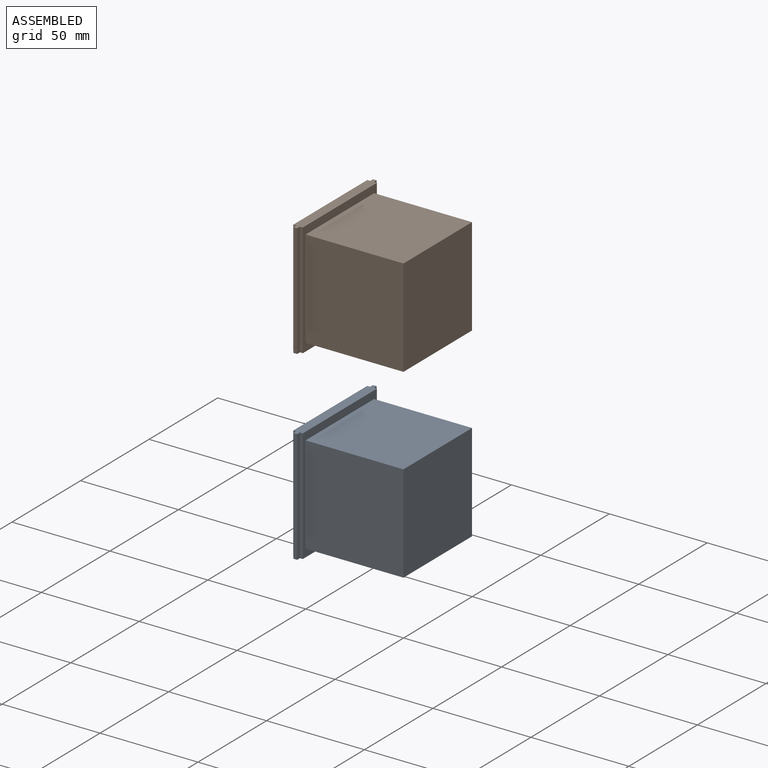
[diagram: assembled view]
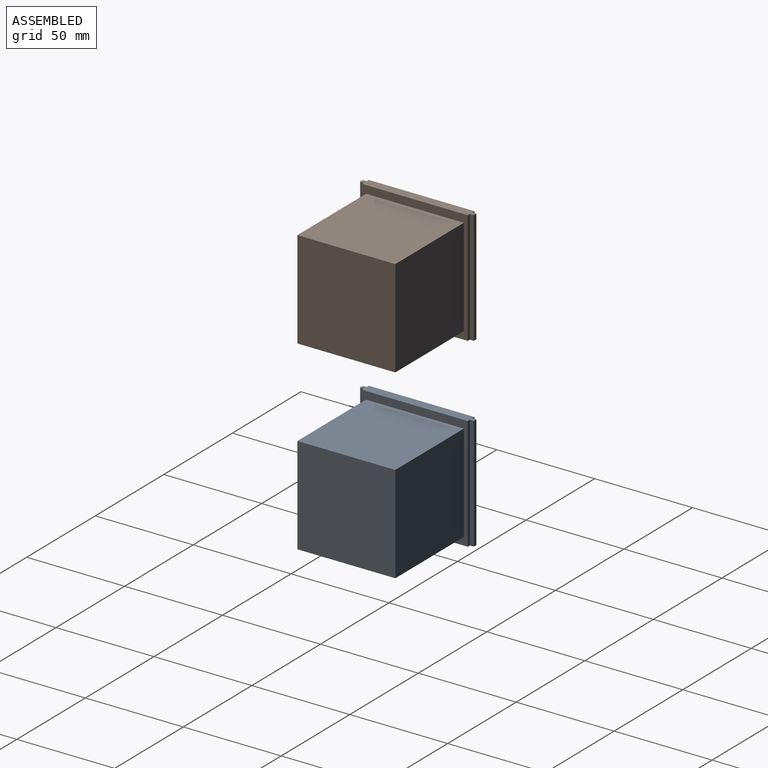
[diagram: assembled view, second angle]
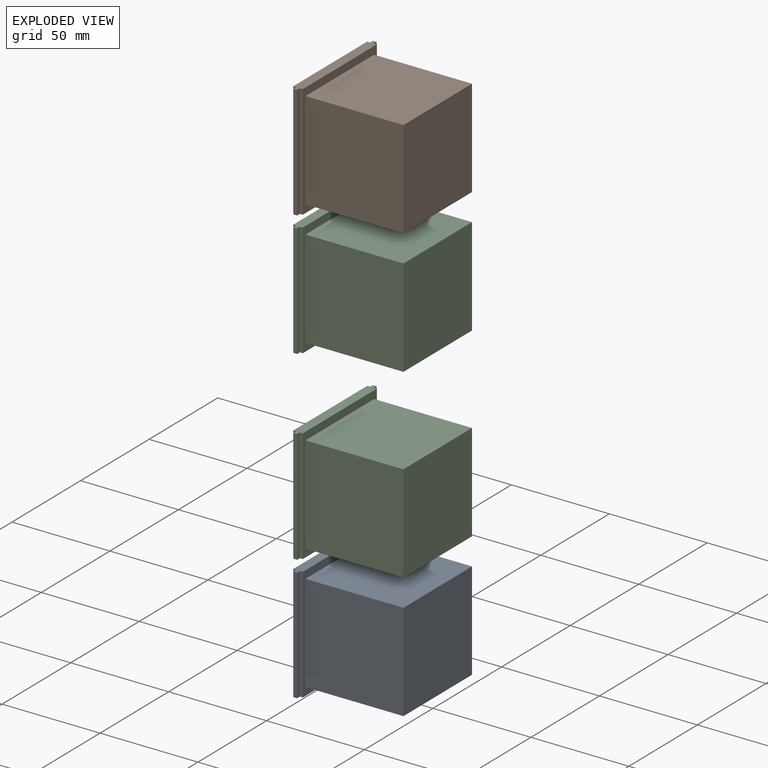
[diagram: exploded view]
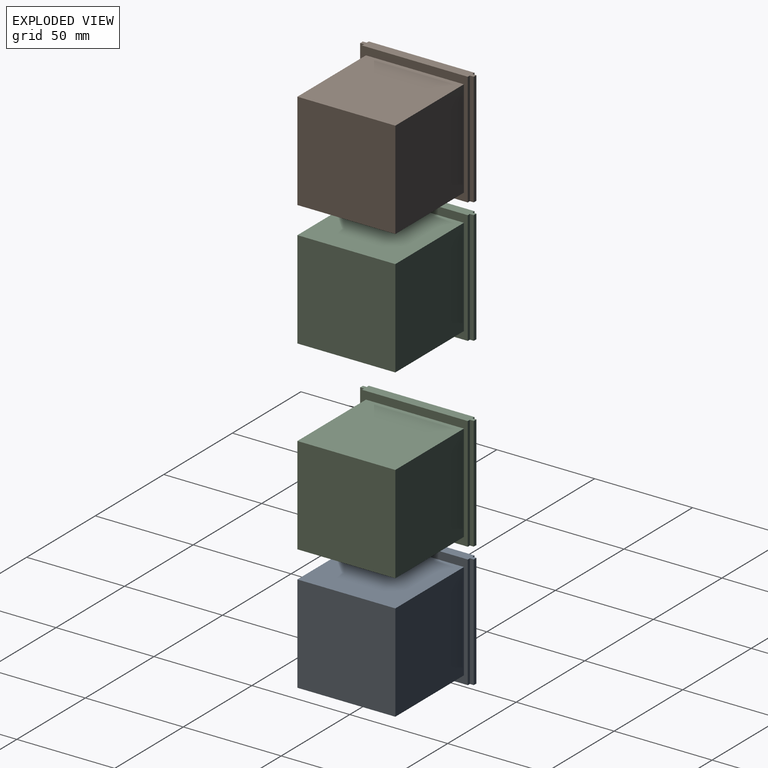
[diagram: exploded view, second angle]
FCSTD DOCUMENT  (FreeCAD 0.22R35966 (Git))
Label: OnlyContactSimulation
License: All rights reserved
LicenseURL: http://en.wikipedia.org/wiki/All_rights_reserved
objects: App::DocumentObjectGroupPython×56, PartDesign::CoordinateSystem×5, Part::FeaturePython×3, App::TextDocument×3, Part::Line×3, App::Link×2, App::Part×2, App::FeaturePython×2, App::MaterialObjectPython×2, App::DocumentObjectGroup×1
note: 11 computed .brp shape members not serialized (recipe doc carries the construction recipe); baked Part::Feature solids carry a one-line shape summary decoded from their .brp
EXTERNAL_REF file=pocketqube.FCStd obj=Part

FEATURE [App::Link] Link  label="Satellite"
  LinkPlacement = pos=(0,1.32322e-05,111) rot=(0,0,1;0rad)
  LinkedObject = -> <external pocketqube.FCStd>#Part
  Placement = pos=(0,1.32322e-05,111) rot=(0,0,1;0rad)
FEATURE [App::Link] Link001  label="Satellite001"
  LinkPlacement = pos=(0,2.45571e-05,206) rot=(0,0,1;0rad)
  LinkedObject = -> <external pocketqube.FCStd>#Part
  Placement = pos=(0,2.45571e-05,206) rot=(0,0,1;0rad)
FEATURE [Part::FeaturePython] Point  # WARN: FeaturePython — macro-defined, semantics opaque (R4)
  X = 0
  Y = 0
  Z = 0
FEATURE [App::Part] Part
  Group = -> [Point]
  Origin = -> Origin001
  Placement = pos=(27.45,1.32322e-05,57) rot=(0,0,1;0rad)
FEATURE [App::DocumentObjectGroup] Group  label="CAD"
  Group = -> [Link,Link001,Part]
FEATURE [App::DocumentObjectGroupPython] MBD_animated_vectors  # scripted group (container) (typed FeaturePython)
FEATURE [App::DocumentObjectGroupPython] MBD_constitutive_laws  # scripted group (container) (typed FeaturePython)
FEATURE [App::DocumentObjectGroupPython] MBD_drives_and_drive_callers  # scripted group (container) (typed FeaturePython)
FEATURE [App::DocumentObjectGroupPython] MBD_markers  # scripted group (container) (typed FeaturePython)
FEATURE [App::DocumentObjectGroupPython] MBD_abstract_nodes  # scripted group (container) (typed FeaturePython)
FEATURE [App::DocumentObjectGroupPython] MBD_hydraulic_nodes  # scripted group (container) (typed FeaturePython)
FEATURE [App::DocumentObjectGroupPython] MBD_structural_static_nodes  # scripted group (container) (typed FeaturePython)
FEATURE [App::DocumentObjectGroupPython] MBD_beam_elements  # scripted group (container) (typed FeaturePython)
FEATURE [App::DocumentObjectGroupPython] MBD_genel_clamps  # scripted group (container) (typed FeaturePython)
FEATURE [App::DocumentObjectGroupPython] MBD_genel_elements  # scripted group (container) (typed FeaturePython)
  Group = -> [MBD_genel_clamps]
FEATURE [App::DocumentObjectGroupPython] MBD_gravity_elements  # scripted group (container) (typed FeaturePython)
FEATURE [App::DocumentObjectGroupPython] MBD_hydraulic_fluid_elements  # scripted group (container) (typed FeaturePython)
FEATURE [App::DocumentObjectGroupPython] MBD_hydraulic_elements  # scripted group (container) (typed FeaturePython)
  Group = -> [MBD_hydraulic_fluid_elements]
FEATURE [App::DocumentObjectGroupPython] MBD_angular_acceleration_joints  # scripted group (container) (typed FeaturePython)
FEATURE [App::DocumentObjectGroupPython] MBD_angular_velocity_joints  # scripted group (container) (typed FeaturePython)
FEATURE [App::DocumentObjectGroupPython] MBD_assembly_joints  # scripted group (container) (typed FeaturePython)
FEATURE [App::DocumentObjectGroupPython] MBD_clamp_joints  # scripted group (container) (typed FeaturePython)
FEATURE [App::DocumentObjectGroupPython] MBD_coincidence_joints  # scripted group (container) (typed FeaturePython)
FEATURE [App::DocumentObjectGroupPython] MBD_cylindrical_joints  # scripted group (container) (typed FeaturePython)
FEATURE [App::DocumentObjectGroupPython] MBD_deformable_axial_joints  # scripted group (container) (typed FeaturePython)
FEATURE [App::DocumentObjectGroupPython] MBD_deformable_displacement_joints  # scripted group (container) (typed FeaturePython)
FEATURE [App::DocumentObjectGroupPython] MBD_deformable_hinge_joints  # scripted group (container) (typed FeaturePython)
FEATURE [App::DocumentObjectGroupPython] MBD_distance_joints  # scripted group (container) (typed FeaturePython)
FEATURE [App::DocumentObjectGroupPython] MBD_drive_hinge_joints  # scripted group (container) (typed FeaturePython)
FEATURE [App::DocumentObjectGroupPython] MBD_in_line_joints  # scripted group (container) (typed FeaturePython)
FEATURE [App::DocumentObjectGroupPython] MBD_in_plane_joints  # scripted group (container) (typed FeaturePython)
FEATURE [App::DocumentObjectGroupPython] MBD_linear_acceleration_joints  # scripted group (container) (typed FeaturePython)
FEATURE [App::DocumentObjectGroupPython] MBD_linear_velocity_joints  # scripted group (container) (typed FeaturePython)
FEATURE [App::DocumentObjectGroupPython] MBD_prismatic_joints  # scripted group (container) (typed FeaturePython)
FEATURE [App::DocumentObjectGroupPython] MBD_hinge_joints  # scripted group (container) (typed FeaturePython)
FEATURE [App::DocumentObjectGroupPython] MBD_revolute_pin_joints  # scripted group (container) (typed FeaturePython)
FEATURE [App::DocumentObjectGroupPython] MBD_revolute_rotation_joints  # scripted group (container) (typed FeaturePython)
FEATURE [App::DocumentObjectGroupPython] MBD_shock_absorber_joints  # scripted group (container) (typed FeaturePython)
FEATURE [App::DocumentObjectGroupPython] MBD_slider_joints  # scripted group (container) (typed FeaturePython)
FEATURE [App::DocumentObjectGroupPython] MBD_spherical_hinge_joints  # scripted group (container) (typed FeaturePython)
FEATURE [App::DocumentObjectGroupPython] MBD_total_joints  # scripted group (container) (typed FeaturePython)
FEATURE [App::DocumentObjectGroupPython] MBD_total_pin_joints  # scripted group (container) (typed FeaturePython)
FEATURE [App::DocumentObjectGroupPython] MBD_viscous_body_joints  # scripted group (container) (typed FeaturePython)
FEATURE [App::DocumentObjectGroupPython] MBD_joint_elements  # scripted group (container) (typed FeaturePython)
  Group = -> [MBD_angular_acceleration_joints,MBD_angular_velocity_joints,MBD_assembly_joints,MBD_clamp_joints,MBD_coincidence_joints,MBD_cylindrical_joints,MBD_deformable_axial_joints,MBD_deformable_displacement_joints,MBD_deformable_hinge_joints,MBD_distance_joints,MBD_drive_hinge_joints,MBD_in_line_joints,MBD_in_plane_joints,MBD_linear_acceleration_joints,MBD_linear_velocity_joints,MBD_prismatic_joints,+9 more]
FEATURE [App::DocumentObjectGroupPython] MBD_dummy_body_elements  # scripted group (container) (typed FeaturePython)
FEATURE [App::DocumentObjectGroupPython] MBD_gear_body_elements  # scripted group (container) (typed FeaturePython)
FEATURE [App::DocumentObjectGroupPython] MBD_static_body_elements  # scripted group (container) (typed FeaturePython)
FEATURE [App::DocumentObjectGroupPython] MBD_structural_couple_elements  # scripted group (container) (typed FeaturePython)
FEATURE [App::DocumentObjectGroupPython] MBD_structural_force_elements  # scripted group (container) (typed FeaturePython)
FEATURE [App::DocumentObjectGroupPython] MBD_scalar_functions  # scripted group (container) (typed FeaturePython)
FEATURE [App::TextDocument] ELEMENT_input_file
  Text = <blob: 9938 chars omitted>
FEATURE [App::TextDocument] ELEMENT_input_file_aux
FEATURE [App::DocumentObjectGroupPython] MBD_input_files  # scripted group (container) (typed FeaturePython)
  Group = -> [ELEMENT_input_file,ELEMENT_input_file_aux]
FEATURE [App::TextDocument] ELEMENT_variables
FEATURE [App::DocumentObjectGroupPython] MBD_user_defined_variables  # scripted group (container) (typed FeaturePython)
  Group = -> [ELEMENT_variables]
FEATURE [Part::Line] ELEMENT_cmx
  AttacherType = Attacher::AttachEngine3D
  X1 = 1e-16
  X2 = 1e-16
  Y1 = 1.32322e-05
  Y2 = 2.45571e-05
  Z1 = 140
  Z2 = 177
FEATURE [Part::Line] ELEMENT_cmy
  AttacherType = Attacher::AttachEngine3D
  X1 = 0
  X2 = 0
  Y1 = 0
  Y2 = 0
  Z1 = 0
  Z2 = 1
FEATURE [Part::Line] ELEMENT_cmz
  AttacherType = Attacher::AttachEngine3D
  X1 = 0
  X2 = 0
  Y1 = 0
  Y2 = 0
  Z1 = 0
  Z2 = 1
FEATURE [PartDesign::CoordinateSystem] ELEMENT_ground
  AttacherType = Attacher::AttachEngine3D
FEATURE [App::DocumentObjectGroupPython] MBD_global_reference_frame  # scripted group (container) (typed FeaturePython)
  Group = -> [ELEMENT_cmx,ELEMENT_cmy,ELEMENT_cmz,ELEMENT_ground]
FEATURE [App::FeaturePython] ELEMENT_parameters  # WARN: FeaturePython — macro-defined, semantics opaque (R4)
  assembly_max_iterations = 1000
  default_orientation = 0
  derivatives_coefficient = auto
  derivatives_max_iterations = 100
  derivatives_tolerance = 0.0001
  final_time = 4
  initial_position_stiffness = 1
  initial_time = 0
  initial_velocity_stiffness = 1
  integration_max_iterations = 100
  model = 0
  modules_to_load = 0
  omega_rotates = 0
  output_data = 0
  output_meter = 1
  path_to_ELEMENT_executable = <userpath>/.local/share/FreeCAD/Mod/FreeCAD-motion-workbench-master/mbdyn-1.7.3-executables/LinuxExecutable/mbdyn
  print = 0
  skip_initial_joint_assembly = 0
  solver = 0
  time_step = 0.01
  tolerance = 1e-06
  type_of_path_to_ELEMENT_executable = 0
  type_of_path_to_run_time_loadable_modules = 0
  type_of_working_directory = 0
  units = 0
FEATURE [App::FeaturePython] ELEMENT_animation  # WARN: FeaturePython — macro-defined, semantics opaque (R4)
  animationClicked = false
  assembled = false
  association0 = none
  association1 = none
  association2 = none
  association3 = none
  association4 = none
  association5 = none
  association6 = none
  association7 = none
  association8 = none
  association9 = none
  bodies_line_width = 1
  bodies_point_size = 4
  characteristic_length = 352.5
  continous = true
  current_time = 0
  current_time_step = 0
  follow_selected_object = false
  highlight_element = true
  objects_to_animate = 0
  speed = 10
  stop_at_time = 0
  stop_at_time_step = 0
  subAssembly = true
  transparency_when_assembled = 0
  transparency_when_exploded = 50
  zoon_when_contracted = 0.5
  zoon_when_expanded = 1
FEATURE [App::DocumentObjectGroupPython] MBD_simulation_parameters  # scripted group (container) (typed FeaturePython)
  Group = -> [ELEMENT_parameters,ELEMENT_animation]
FEATURE [Part::FeaturePython] ELEMENT_rigid_body_1  # WARN: FeaturePython — macro-defined, semantics opaque (R4)
  FirstAxisOfInertia = (0,1,0)
  Ixx = 530.106
  Iyy = 527.334
  Izz = 478.615
  Placement = pos=(0,1.32322e-05,111) rot=(0,0,1;0rad)
  SecondAxisOfInertia = (0,0,1)
  ThirdAxisOfInertia = (1,0,0)
  absolute_center_of_mass_X = 24.3718
  absolute_center_of_mass_Y = 1.32322e-05
  absolute_center_of_mass_Z = 111
  base_entity = Link
  density = 7.9e-06
  ixx = 6.7102e+07
  iyy = 6.67512e+07
  izz = 6.05841e+07
  label = 1
  mass = 1.11222
  material = Steel-Generic
  material_definition = 0
  material_object = ELEMENT_material_1
  node = 1
  relative_center_of_mass_X = 0
  relative_center_of_mass_Y = 0
  relative_center_of_mass_Z = 0
  type = rigid
  volume = 140788
FEATURE [App::MaterialObjectPython] ELEMENT_material_1  # material (typed FeaturePython)
  Category = 0
  Material = Density=7900.00 kg/m^3; Name=Steel-Generic
FEATURE [PartDesign::CoordinateSystem] ELEMENT_structural_dynamic_1
  AttacherType = Attacher::AttachEngine3D
  Placement = pos=(24.3718,1.32322e-05,111) rot=(0,0,1;0rad)
  absolute_angular_velocity_X = 0
  absolute_angular_velocity_Y = 0
  absolute_angular_velocity_Z = 0
  absolute_orientation_matrix = 3, 0.0, 0.0, 1.0, 2, 0.0, 1.0, 0.0
  absolute_position_X = 24.3718
  absolute_position_Y = 1.32322e-05
  absolute_position_Z = 111
  absolute_velocity_X = 0
  absolute_velocity_Y = 0
  absolute_velocity_Z = 0
  base_entity = -> ELEMENT_rigid_body_1
  initial_conditions_reference_system_angular_velocity = 0
  initial_conditions_reference_system_velocity = 0
  label = 1
  offset_pitch = 0
  offset_reference_system_orientation = 0
  offset_reference_system_position = 0
  offset_roll = 0
  offset_x = 0
  offset_y = 0
  offset_yaw = 0
  offset_z = 0
  placement_method = 0
  plugin_variables = none
  type = dynamic
FEATURE [Part::FeaturePython] ELEMENT_rigid_body_2  # WARN: FeaturePython — macro-defined, semantics opaque (R4)
  FirstAxisOfInertia = (0,1,0)
  Ixx = 530.106
  Iyy = 527.334
  Izz = 478.615
  Placement = pos=(0,2.45571e-05,206) rot=(0,0,1;0rad)
  SecondAxisOfInertia = (0,0,1)
  ThirdAxisOfInertia = (1,0,0)
  absolute_center_of_mass_X = 24.3718
  absolute_center_of_mass_Y = 2.45571e-05
  absolute_center_of_mass_Z = 206
  base_entity = Link001
  density = 7.9e-06
  ixx = 6.7102e+07
  iyy = 6.67512e+07
  izz = 6.05841e+07
  label = 2
  mass = 1.11222
  material = Steel-Generic
  material_definition = 0
  material_object = ELEMENT_material_2
  node = 2
  relative_center_of_mass_X = 0
  relative_center_of_mass_Y = 0
  relative_center_of_mass_Z = 0
  type = rigid
  volume = 140788
FEATURE [App::DocumentObjectGroupPython] MBD_rigid_body_elements  # scripted group (container) (typed FeaturePython)
  Group = -> [ELEMENT_rigid_body_1,ELEMENT_rigid_body_2]
FEATURE [App::Part] MBD_body_elements
  Group = -> [MBD_dummy_body_elements,MBD_rigid_body_elements,MBD_gear_body_elements,MBD_static_body_elements,ELEMENT_rigid_body_1,ELEMENT_rigid_body_2]
  Origin = -> Origin
FEATURE [App::DocumentObjectGroupPython] MBD_elements  # scripted group (container) (typed FeaturePython)
  Group = -> [MBD_beam_elements,MBD_body_elements,MBD_genel_elements,MBD_gravity_elements,MBD_hydraulic_elements,MBD_joint_elements,MBD_structural_couple_elements,MBD_structural_force_elements]
FEATURE [App::MaterialObjectPython] ELEMENT_material_2  # material (typed FeaturePython)
  Category = 0
  Material = Density=7900.00 kg/m^3; Name=Steel-Generic
FEATURE [App::DocumentObjectGroupPython] MBD_materials  # scripted group (container) (typed FeaturePython)
  Group = -> [ELEMENT_material_1,ELEMENT_material_2]
FEATURE [PartDesign::CoordinateSystem] ELEMENT_structural_dynamic_2
  AttacherType = Attacher::AttachEngine3D
  Placement = pos=(24.3718,2.45571e-05,206) rot=(0,0,1;0rad)
  absolute_angular_velocity_X = 0
  absolute_angular_velocity_Y = 0
  absolute_angular_velocity_Z = 0
  absolute_orientation_matrix = 3, 0.0, 0.0, 1.0, 2, 0.0, 1.0, 0.0
  absolute_position_X = 24.3718
  absolute_position_Y = 2.45571e-05
  absolute_position_Z = 206
  absolute_velocity_X = 0
  absolute_velocity_Y = 0
  absolute_velocity_Z = 0
  base_entity = -> ELEMENT_rigid_body_2
  initial_conditions_reference_system_angular_velocity = 0
  initial_conditions_reference_system_velocity = 0
  label = 2
  offset_pitch = 0
  offset_reference_system_orientation = 0
  offset_reference_system_position = 0
  offset_roll = 0
  offset_x = 0
  offset_y = 0
  offset_yaw = 0
  offset_z = 0
  placement_method = 0
  plugin_variables = none
  type = dynamic
FEATURE [App::DocumentObjectGroupPython] MBD_structural_dynamic_nodes  # scripted group (container) (typed FeaturePython)
  Group = -> [ELEMENT_structural_dynamic_1,ELEMENT_structural_dynamic_2]
FEATURE [PartDesign::CoordinateSystem] ELEMENT_structural_dummy_3
  AttacherType = Attacher::AttachEngine3D
  Placement = pos=(1e-16,1.32322e-05,140) rot=(0,0,1;0rad)
  absolute_position_X = 1e-16
  absolute_position_Y = 1.32322e-05
  absolute_position_Z = 140
  base_entity = -> ELEMENT_rigid_body_1
  dummy_node_type = 0
  label = 3
  offset_pitch = 0
  offset_reference_system_orientation = 0
  offset_reference_system_position = 0
  offset_roll = 0
  offset_x = 0
  offset_y = 0
  offset_yaw = 0
  offset_z = 0
  placement_method = 1
  plugin_variables = none
  position_reference_1 = -> ELEMENT_rigid_body_1 [Edge20]
  relative_offset_X = -24.3718
  relative_offset_Y = -5e-16
  relative_offset_Z = 29
  relative_orientation_matrix = 3, 0.0, 0.0, 1.0, 2, 0.0, 1.0, 0.0
  type = dummy
FEATURE [PartDesign::CoordinateSystem] ELEMENT_structural_dummy_5
  AttacherType = Attacher::AttachEngine3D
  Placement = pos=(1e-16,2.45571e-05,177) rot=(0,0,1;0rad)
  absolute_position_X = 1e-16
  absolute_position_Y = 2.45571e-05
  absolute_position_Z = 177
  base_entity = -> ELEMENT_rigid_body_2
  dummy_node_type = 0
  label = 5
  offset_pitch = 0
  offset_reference_system_orientation = 0
  offset_reference_system_position = 0
  offset_roll = 0
  offset_x = 0
  offset_y = 0
  offset_yaw = 0
  offset_z = 0
  placement_method = 1
  plugin_variables = none
  position_reference_1 = -> ELEMENT_rigid_body_2 [Edge15]
  relative_offset_X = -24.3718
  relative_offset_Y = -2.5e-15
  relative_offset_Z = -29
  relative_orientation_matrix = 3, 0.0, 0.0, 1.0, 2, 0.0, 1.0, 0.0
  type = dummy
FEATURE [App::DocumentObjectGroupPython] MBD_structural_dummy_nodes  # scripted group (container) (typed FeaturePython)
  Group = -> [ELEMENT_structural_dummy_3,ELEMENT_structural_dummy_5]
FEATURE [App::DocumentObjectGroupPython] MBD_nodes  # scripted group (container) (typed FeaturePython)
  Group = -> [MBD_abstract_nodes,MBD_structural_dummy_nodes,MBD_structural_dynamic_nodes,MBD_hydraulic_nodes,MBD_structural_static_nodes]
FEATURE [App::DocumentObjectGroupPython] MBD_simulation  # scripted group (container) (typed FeaturePython)
  Group = -> [MBD_animated_vectors,MBD_constitutive_laws,MBD_drives_and_drive_callers,MBD_global_reference_frame,MBD_input_files,MBD_materials,MBD_markers,MBD_nodes,MBD_elements,MBD_simulation_parameters,MBD_scalar_functions,MBD_user_defined_variables]

RESOLVED EXTERNAL PARTS (link-assembly join: the EXTERNAL_REF files above that resolve inside this repo's crawl, each included once):
---- part pocketqube.FCStd = doc fcstd_475161709109 ----
FCSTD DOCUMENT  (FreeCAD 0.22R35966 (Git))
Label: pocketqube
License: All rights reserved
LicenseURL: http://en.wikipedia.org/wiki/All_rights_reserved
objects: Sketcher::SketchObject×1, PartDesign::Pad×1, PartDesign::Mirrored×1, PartDesign::Body×1, Part::Box×1, Part::MultiFuse×1, App::Part×1
note: 7 computed .brp shape members not serialized (recipe doc carries the construction recipe); baked Part::Feature solids carry a one-line shape summary decoded from their .brp

FEATURE [Sketcher::SketchObject] Sketch
  FullyConstrained = true
  MapMode = 5
  Support = -> [XY_Plane]
  sketch-geometry (8):
    g0: LineSegment StartX=-2.45 StartY=27 StartZ=0 EndX=-0.95 EndY=27 EndZ=0
    g1: LineSegment StartX=-0.95 StartY=27 StartZ=0 EndX=-0.95 EndY=29 EndZ=0
    g2: LineSegment StartX=-0.95 StartY=29 StartZ=0 EndX=0.95 EndY=29 EndZ=0
    g3: LineSegment StartX=0.95 StartY=29 StartZ=0 EndX=0.95 EndY=27 EndZ=0
    g4: LineSegment StartX=0.95 StartY=27 StartZ=0 EndX=2.45 EndY=27 EndZ=0
    g5: LineSegment StartX=2.45 StartY=27 StartZ=0 EndX=2.45 EndY=0 EndZ=0
    g6: LineSegment StartX=-2.45 StartY=27 StartZ=0 EndX=-2.45 EndY=0 EndZ=0
    g7: LineSegment StartX=-2.45 StartY=0 StartZ=0 EndX=2.45 EndY=0 EndZ=0
  constraints (23):
    c: Horizontal(g0)
    c: Coincident(g0,g1)
    c: Vertical(g1)
    c: Coincident(g1,g2)
    c: Coincident(g2,g3)
    c: Vertical(g3)
    c: Coincident(g3,g4)
    c: Horizontal(g4)
    c: Equal(g1,g3)
    c: Distance(g2,g2) = 1.9
    c: Equal(g0,g4)
    c: Symmetric(g1,g2,g-2)
    c: Distance(g1,g1) = 2
    c: DistanceX(g4,g4) = 1.5
    c: Coincident(g5,g4)
    c: Vertical(g5)
    c: PointOnObject(g5,g-1)
    c: DistanceY(g5,g5) = 27
    c: Coincident(g6,g0)
    c: PointOnObject(g6,g-1)
    c: Vertical(g6)
    c: Coincident(g7,g6)
    c: Coincident(g7,g5)
FEATURE [PartDesign::Pad] Pad
  Direction = (0,0,1)
  Length = 58
  Length2 = 10
  Midplane = true
  Profile = -> Sketch
  ReferenceAxis = -> Sketch [N_Axis]
  Suppressed = false
  Type = 0
FEATURE [PartDesign::Mirrored] Mirrored
  BaseFeature = -> Pad
  MirrorPlane = -> XZ_Plane
  Originals = -> [Pad]
  Suppressed = false
FEATURE [PartDesign::Body] Body
  Group = -> [Sketch,Pad,Mirrored]
  Origin = -> Origin
  Tip = -> Mirrored
FEATURE [Part::Box] Box  label="Cube"
  AttacherType = Attacher::AttachEngine3D
  Height = 50
  Length = 50
  Placement = pos=(2.45,-25,-25) rot=(0,0,1;0rad)
  Width = 50
FEATURE [Part::MultiFuse] Fusion
  Shapes = -> [Body,Box]
FEATURE [App::Part] Part  label="Satellite"
  Group = -> [Box,Body,Fusion]
  Origin = -> Origin001
